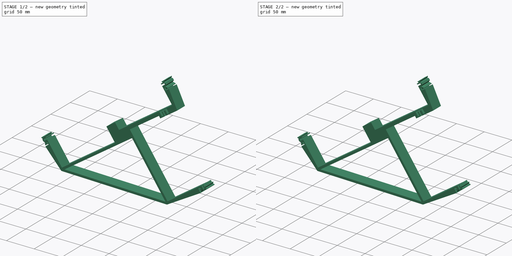
[diagram: build sequence overview — one tinted view per stage of 2, left to right]
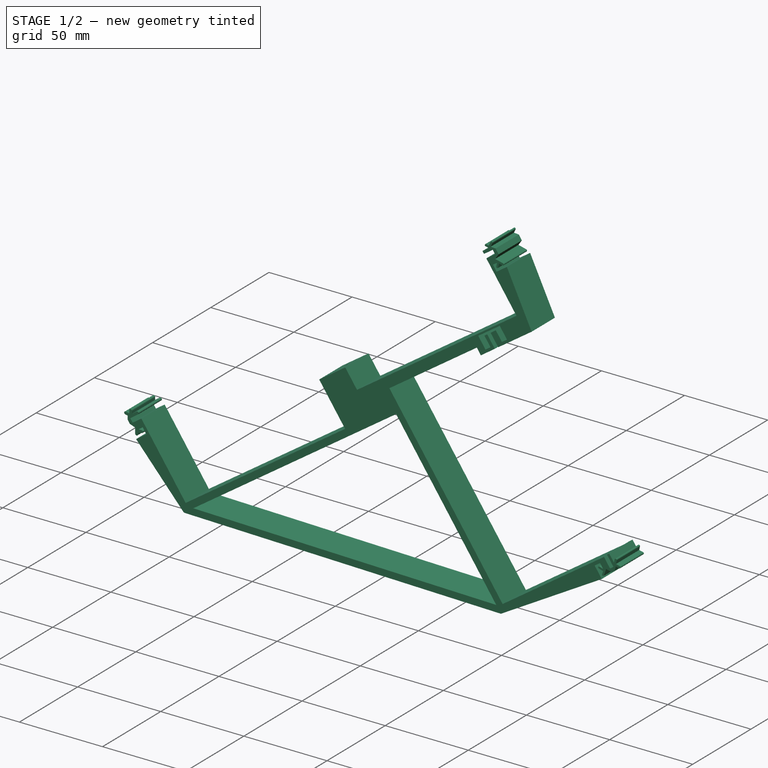
[diagram: stage 1 of 2 — iso view after this stage's code; geometry added in this stage tinted green]
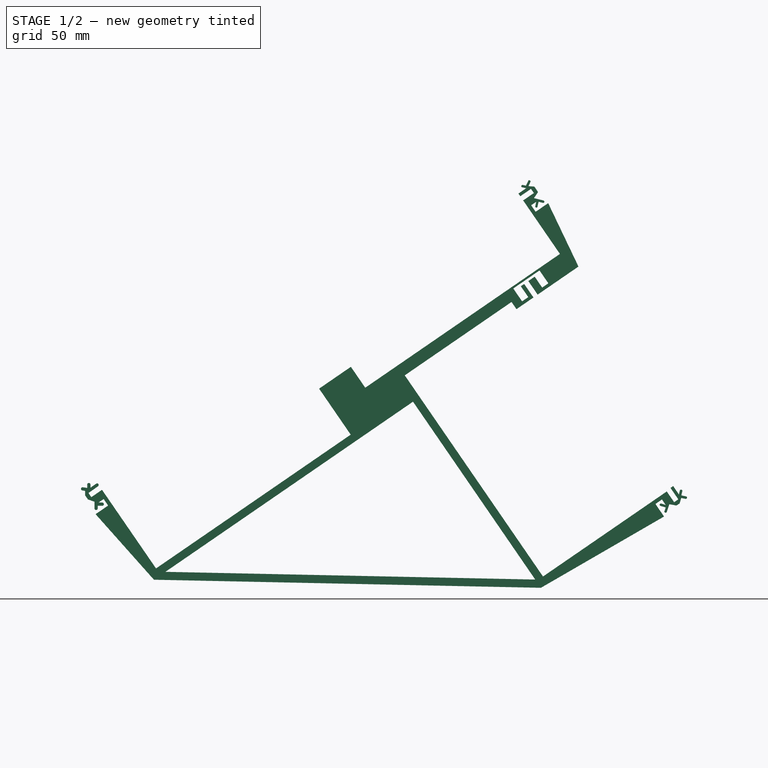
[diagram: stage 1 of 2 — front view after this stage's code; geometry added in this stage tinted green]
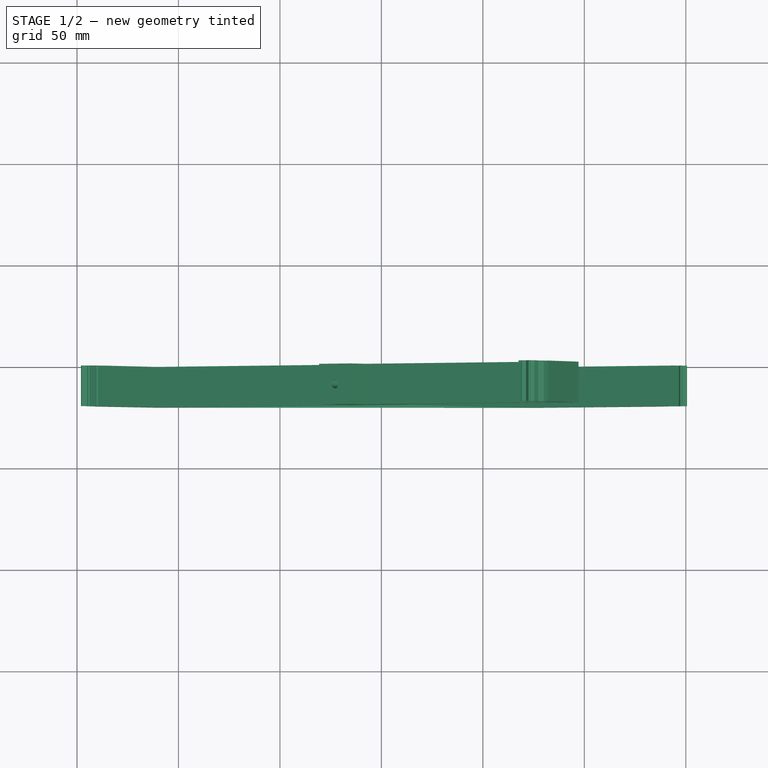
[diagram: stage 1 of 2 — top view after this stage's code; geometry added in this stage tinted green]
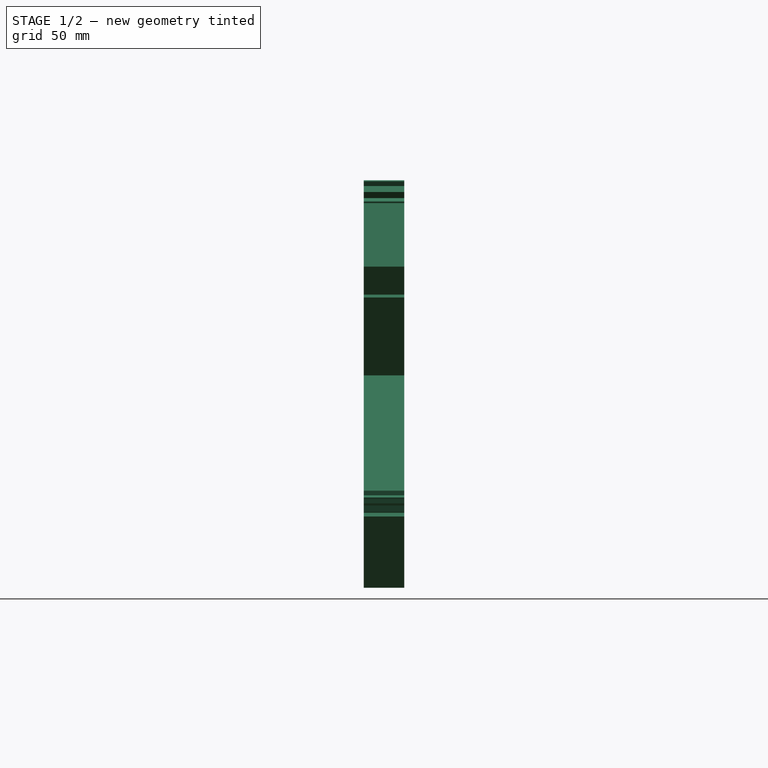
[diagram: stage 1 of 2 — right view after this stage's code; geometry added in this stage tinted green]
FCSTD DOCUMENT  (FreeCAD 0.21R33668 +7 (Git))
Label: rib-shallow
License: All rights reserved
LicenseURL: http://en.wikipedia.org/wiki/All_rights_reserved
objects: Sketcher::SketchObject×2, PartDesign::Pad×1, PartDesign::Plane×1, PartDesign::Pocket×1, PartDesign::Chamfer×1, PartDesign::Body×1
note: 10 computed .brp shape members not serialized (recipe doc carries the construction recipe); baked Part::Feature solids carry a one-line shape summary decoded from their .brp

FEATURE [Sketcher::SketchObject] Sketch
  FullyConstrained = false
  MapMode = 5
  Placement = pos=(0,0,0) rot=(1,0,0;1.5708rad)
  Support = -> [XZ_Plane]
  sketch-geometry (196):
    g0: LineSegment StartX=7.05491 StartY=39.4835 StartZ=0 EndX=112.959 EndY=112.261 EndZ=0
    g1: LineSegment StartX=112.959 StartY=112.261 StartZ=0 EndX=111.543 EndY=114.321 EndZ=0
    g2: LineSegment StartX=111.543 StartY=114.321 StartZ=0 EndX=5.63901 EndY=41.5439 EndZ=0
    g3: LineSegment StartX=5.63901 StartY=41.5439 StartZ=0 EndX=7.05491 EndY=39.4835 EndZ=0
    g4: LineSegment StartX=12.824 StartY=43.448 StartZ=0 EndX=38.8765 EndY=5.53669 EndZ=0
    g5: LineSegment StartX=38.8765 StartY=5.53669 StartZ=0 EndX=133.243 EndY=70.3848 EndZ=0
    g6: LineSegment StartX=133.243 StartY=70.3848 StartZ=0 EndX=107.19 EndY=108.296 EndZ=0
    g7: LineSegment StartX=117.807 StartY=118.625 StartZ=0 EndX=223.711 EndY=191.402 EndZ=0
    g8: LineSegment StartX=223.711 StartY=191.402 StartZ=0 EndX=225.127 EndY=189.342 EndZ=0
    g9: LineSegment StartX=225.127 StartY=189.342 StartZ=0 EndX=119.223 EndY=116.565 EndZ=0
    g10: LineSegment StartX=119.223 StartY=116.565 StartZ=0 EndX=117.807 EndY=118.625 EndZ=0
    g11: LineSegment StartX=124.992 StartY=120.529 StartZ=0 EndX=142.549 EndY=94.9805 EndZ=0
    g12: LineSegment StartX=142.549 StartY=94.9805 StartZ=0 EndX=236.915 EndY=159.829 EndZ=0
    g13: LineSegment StartX=236.915 StartY=159.829 StartZ=0 EndX=219.358 EndY=185.377 EndZ=0
    g14: LineSegment StartX=223.542 StartY=144.329 StartZ=0 EndX=296.319 EndY=38.4246 EndZ=0
    g15: LineSegment StartX=296.319 StartY=38.4246 StartZ=0 EndX=294.259 EndY=37.0087 EndZ=0
    g16: LineSegment StartX=294.259 StartY=37.0087 StartZ=0 EndX=221.482 EndY=142.913 EndZ=0
    g17: LineSegment StartX=221.482 StartY=142.913 StartZ=0 EndX=223.542 EndY=144.329 EndZ=0
    g18: LineSegment StartX=225.446 StartY=137.144 StartZ=0 EndX=166.107 EndY=96.3662 EndZ=0
    g19: LineSegment StartX=166.107 StartY=96.3662 StartZ=0 EndX=230.955 EndY=2 EndZ=0
    g20: LineSegment StartX=230.955 StartY=2 StartZ=0 EndX=290.294 EndY=42.7778 EndZ=0
    g21: LineSegment StartX=120.466 StartY=124.821 StartZ=0 EndX=104.807 EndY=114.06 EndZ=0
    g22: LineSegment StartX=104.807 StartY=114.06 StartZ=0 EndX=105.713 EndY=112.741 EndZ=0
    g23: LineSegment StartX=105.713 StartY=112.741 StartZ=0 EndX=112.883 EndY=117.668 EndZ=0
    g24: LineSegment StartX=112.883 StartY=117.668 StartZ=0 EndX=122.738 EndY=103.328 EndZ=0
    g25: LineSegment StartX=122.738 StartY=103.328 StartZ=0 EndX=124.056 EndY=104.234 EndZ=0
    g26: LineSegment StartX=124.056 StartY=104.234 StartZ=0 EndX=114.202 EndY=118.575 EndZ=0
    g27: LineSegment StartX=114.202 StartY=118.575 StartZ=0 EndX=121.372 EndY=123.502 EndZ=0
    g28: LineSegment StartX=121.372 StartY=123.502 StartZ=0 EndX=120.466 EndY=124.821 EndZ=0
    g29: LineSegment StartX=109.863 StartY=109.526 StartZ=0 EndX=119.718 EndY=95.1861 EndZ=0
    g30: LineSegment StartX=119.718 StartY=95.1861 StartZ=0 EndX=132.74 EndY=104.135 EndZ=0
    g31: LineSegment StartX=132.74 StartY=104.135 StartZ=0 EndX=122.885 EndY=118.475 EndZ=0
    g32: LineSegment StartX=122.885 StartY=118.475 StartZ=0 EndX=124.204 EndY=119.381 EndZ=0
    g33: LineSegment StartX=124.204 StartY=119.381 StartZ=0 EndX=134.965 EndY=103.722 EndZ=0
    g34: LineSegment StartX=134.965 StartY=103.722 StartZ=0 EndX=119.306 EndY=92.9612 EndZ=0
    g35: LineSegment StartX=119.306 StartY=92.9612 StartZ=0 EndX=108.545 EndY=108.62 EndZ=0
    g36: LineSegment StartX=108.545 StartY=108.62 StartZ=0 EndX=109.863 EndY=109.526 EndZ=0
    g37: LineSegment StartX=1.66862 StartY=43.7902 StartZ=0 EndX=9.20119 EndY=32.8289 EndZ=0
    g38: LineSegment StartX=9.20119 StartY=32.8289 StartZ=0 EndX=13.5692 EndY=35.8306 EndZ=0
    g39: LineSegment StartX=13.5692 StartY=35.8306 StartZ=0 EndX=12.1533 EndY=37.891 EndZ=0
    g40: LineSegment StartX=12.1533 StartY=37.891 StartZ=0 EndX=13.1423 EndY=38.5706 EndZ=0
    g41: LineSegment StartX=13.1423 StartY=38.5706 StartZ=0 EndX=15.2379 EndY=35.5212 EndZ=0
    g42: LineSegment StartX=15.2379 StartY=35.5212 StartZ=0 EndX=8.89183 EndY=31.1603 EndZ=0
    g43: LineSegment StartX=8.89183 StartY=31.1603 StartZ=0 EndX=0 EndY=44.0996 EndZ=0
    g44: LineSegment StartX=0 StartY=44.0996 StartZ=0 EndX=6.34602 EndY=48.4605 EndZ=0
    g45: LineSegment StartX=6.34602 StartY=48.4605 StartZ=0 EndX=8.44155 EndY=45.4112 EndZ=0
    g46: LineSegment StartX=8.44155 StartY=45.4112 StartZ=0 EndX=7.45256 EndY=44.7315 EndZ=0
    g47: LineSegment StartX=7.45256 StartY=44.7315 StartZ=0 EndX=6.03666 EndY=46.7919 EndZ=0
    g48: LineSegment StartX=6.03666 StartY=46.7919 StartZ=0 EndX=1.66862 EndY=43.7902 EndZ=0
    g49: LineSegment StartX=217.001 StartY=193.222 StartZ=0 EndX=223.347 EndY=197.583 EndZ=0
    g50: LineSegment StartX=223.347 StartY=197.583 StartZ=0 EndX=232.239 EndY=184.643 EndZ=0
    g51: LineSegment StartX=232.239 StartY=184.643 StartZ=0 EndX=225.893 EndY=180.283 EndZ=0
    g52: LineSegment StartX=225.893 StartY=180.283 StartZ=0 EndX=223.797 EndY=183.332 EndZ=0
    g53: LineSegment StartX=223.797 StartY=183.332 StartZ=0 EndX=224.786 EndY=184.012 EndZ=0
    g54: LineSegment StartX=224.786 StartY=184.012 StartZ=0 EndX=226.202 EndY=181.951 EndZ=0
    g55: LineSegment StartX=226.202 StartY=181.951 StartZ=0 EndX=230.57 EndY=184.953 EndZ=0
    g56: LineSegment StartX=230.57 StartY=184.953 StartZ=0 EndX=223.038 EndY=195.914 EndZ=0
    g57: LineSegment StartX=223.038 StartY=195.914 StartZ=0 EndX=218.67 EndY=192.912 EndZ=0
    g58: LineSegment StartX=218.67 StartY=192.912 StartZ=0 EndX=220.086 EndY=190.852 EndZ=0
    g59: LineSegment StartX=220.086 StartY=190.852 StartZ=0 EndX=219.097 EndY=190.172 EndZ=0
    g60: LineSegment StartX=219.097 StartY=190.172 StartZ=0 EndX=217.001 EndY=193.222 EndZ=0
    g61: LineSegment StartX=214.972 StartY=142.322 StartZ=0 EndX=227.911 EndY=151.214 EndZ=0
    g62: LineSegment StartX=227.911 StartY=151.214 StartZ=0 EndX=232.272 EndY=144.868 EndZ=0
    g63: LineSegment StartX=232.272 StartY=144.868 StartZ=0 EndX=229.222 EndY=142.772 EndZ=0
    g64: LineSegment StartX=229.222 StartY=142.772 StartZ=0 EndX=228.543 EndY=143.761 EndZ=0
    g65: LineSegment StartX=228.543 StartY=143.761 StartZ=0 EndX=230.603 EndY=145.177 EndZ=0
    g66: LineSegment StartX=230.603 StartY=145.177 StartZ=0 EndX=227.602 EndY=149.545 EndZ=0
    g67: LineSegment StartX=227.602 StartY=149.545 StartZ=0 EndX=216.64 EndY=142.013 EndZ=0
    g68: LineSegment StartX=216.64 StartY=142.013 StartZ=0 EndX=219.642 EndY=137.645 EndZ=0
    g69: LineSegment StartX=219.642 StartY=137.645 StartZ=0 EndX=221.702 EndY=139.061 EndZ=0
    g70: LineSegment StartX=221.702 StartY=139.061 StartZ=0 EndX=222.382 EndY=138.072 EndZ=0
    g71: LineSegment StartX=222.382 StartY=138.072 StartZ=0 EndX=219.333 EndY=135.976 EndZ=0
    g72: LineSegment StartX=219.333 StartY=135.976 StartZ=0 EndX=214.972 EndY=142.322 EndZ=0
    g73: LineSegment StartX=288.249 StartY=38.3387 StartZ=0 EndX=285.199 EndY=36.2432 EndZ=0
    g74: LineSegment StartX=285.199 StartY=36.2432 StartZ=0 EndX=289.56 EndY=29.8972 EndZ=0
    g75: LineSegment StartX=289.56 StartY=29.8972 StartZ=0 EndX=302.5 EndY=38.789 EndZ=0
    g76: LineSegment StartX=302.5 StartY=38.789 StartZ=0 EndX=298.139 EndY=45.135 EndZ=0
    g77: LineSegment StartX=298.139 StartY=45.135 StartZ=0 EndX=295.089 EndY=43.0395 EndZ=0
    g78: LineSegment StartX=295.089 StartY=43.0395 StartZ=0 EndX=295.769 EndY=42.0505 EndZ=0
    g79: LineSegment StartX=295.769 StartY=42.0505 StartZ=0 EndX=297.829 EndY=43.4664 EndZ=0
    g80: LineSegment StartX=297.829 StartY=43.4664 StartZ=0 EndX=300.831 EndY=39.0984 EndZ=0
    g81: LineSegment StartX=300.831 StartY=39.0984 StartZ=0 EndX=289.87 EndY=31.5658 EndZ=0
    g82: LineSegment StartX=289.87 StartY=31.5658 StartZ=0 EndX=286.868 EndY=35.9338 EndZ=0
    g83: LineSegment StartX=286.868 StartY=35.9338 StartZ=0 EndX=288.928 EndY=37.3497 EndZ=0
    g84: LineSegment StartX=288.928 StartY=37.3497 StartZ=0 EndX=288.249 EndY=38.3387 EndZ=0
    g85: LineSegment StartX=4.03901 StartY=42.5747 StartZ=0 EndX=2.65585 EndY=42.7938 EndZ=0
    g86: ArcOfCircle CenterX=2.78104 CenterY=43.584 CenterZ=0 NormalX=0 NormalY=0 NormalZ=1 AngleXU=0 Radius=0.8 StartAngle=1.41367 EndAngle=4.55526
    g87: LineSegment StartX=2.90622 StartY=44.3741 StartZ=0 EndX=5.03042 EndY=44.0376 EndZ=0
    g88: LineSegment StartX=5.03042 StartY=44.0376 StartZ=0 EndX=5.03042 EndY=45.6795 EndZ=0
    g89: LineSegment StartX=4.03901 StartY=40.3409 StartZ=0 EndX=5.40659 EndY=38.3508 EndZ=0
    g90: LineSegment StartX=5.40659 StartY=38.3508 StartZ=0 EndX=8.60743 EndY=37.2715 EndZ=0
    g91: LineSegment StartX=8.60743 StartY=37.2715 StartZ=0 EndX=8.60743 EndY=33.9413 EndZ=0
    g92: LineSegment StartX=10.2074 StartY=33.9413 StartZ=0 EndX=10.2074 EndY=35.2368 EndZ=0
    g93: LineSegment StartX=10.2074 StartY=35.2368 StartZ=0 EndX=12.4568 EndY=35.2368 EndZ=0
    g94: ArcOfCircle CenterX=5.83042 CenterY=45.6795 CenterZ=0 NormalX=0 NormalY=0 NormalZ=1 AngleXU=0 Radius=0.8 StartAngle=3e-15 EndAngle=3.14159
    g95: ArcOfCircle CenterX=9.40743 CenterY=33.9413 CenterZ=0 NormalX=0 NormalY=0 NormalZ=1 AngleXU=0 Radius=0.8 StartAngle=3.14159 EndAngle=6.28319
    g96: ArcOfCircle CenterX=12.4568 CenterY=36.0368 CenterZ=0 NormalX=0 NormalY=0 NormalZ=1 AngleXU=0 Radius=0.8 StartAngle=4.71239 EndAngle=7.85398
    g97: LineSegment StartX=12.4568 StartY=36.8368 StartZ=0 EndX=10.6193 EndY=36.8368 EndZ=0
    g98: LineSegment StartX=6.63042 StartY=45.6795 StartZ=0 EndX=6.63042 EndY=44.1666 EndZ=0
    g99: LineSegment StartX=6.63042 StartY=44.1666 StartZ=0 EndX=8.44155 EndY=45.4112 EndZ=0
    g100: LineSegment StartX=7.84905 StartY=43.0626 StartZ=0 EndX=5.63901 EndY=41.5439 EndZ=0
    g101: LineSegment StartX=5.63901 StartY=41.5439 StartZ=0 EndX=7.05491 EndY=39.4835 EndZ=0
    g102: LineSegment StartX=7.05491 StartY=39.4835 StartZ=0 EndX=12.3295 EndY=43.1082 EndZ=0
    g103: LineSegment StartX=4.03901 StartY=40.3409 StartZ=0 EndX=4.03901 EndY=42.5747 EndZ=0
    g104: LineSegment StartX=8.44155 StartY=45.4112 StartZ=0 EndX=9.44731 EndY=46.1366 EndZ=0
    g105: LineSegment StartX=10.3622 StartY=44.8643 StartZ=0 EndX=7.84905 EndY=43.0626 EndZ=0
    g106: LineSegment StartX=10.6193 StartY=36.8368 StartZ=0 EndX=13.1423 EndY=38.5706 EndZ=0
    g107: LineSegment StartX=12.3295 StartY=43.1082 StartZ=0 EndX=38.9484 EndY=4.37272 EndZ=0
    g108: LineSegment StartX=142.549 StartY=94.9805 StartZ=0 EndX=166.903 EndY=59.5417 EndZ=0
    g109: LineSegment StartX=166.903 StartY=59.5417 StartZ=0 EndX=261.269 EndY=124.39 EndZ=0
    g110: LineSegment StartX=261.269 StartY=124.39 StartZ=0 EndX=236.915 EndY=159.829 EndZ=0
    g111: LineSegment StartX=218.437 StartY=187.778 StartZ=0 EndX=217.531 EndY=189.096 EndZ=0
    g112: LineSegment StartX=217.531 StartY=189.096 StartZ=0 EndX=221.385 EndY=191.745 EndZ=0
    g113: LineSegment StartX=221.385 StartY=191.745 StartZ=0 EndX=219.379 EndY=192.171 EndZ=0
    g114: LineSegment StartX=219.629 StartY=193.345 StartZ=0 EndX=221.248 EndY=193.001 EndZ=0
    g115: LineSegment StartX=221.248 StartY=193.001 StartZ=0 EndX=222.34 EndY=195.334 EndZ=0
    g116: LineSegment StartX=223.427 StartY=194.826 StartZ=0 EndX=222.458 EndY=192.755 EndZ=0
    g117: LineSegment StartX=222.458 StartY=192.755 StartZ=0 EndX=225.36 EndY=192.535 EndZ=0
    g118: LineSegment StartX=225.36 StartY=192.535 StartZ=0 EndX=227.206 EndY=189.849 EndZ=0
    g119: LineSegment StartX=227.206 StartY=189.849 StartZ=0 EndX=225.163 EndY=186.851 EndZ=0
    g120: LineSegment StartX=225.163 StartY=186.851 StartZ=0 EndX=229.879 EndY=185.69 EndZ=0
    g121: LineSegment StartX=229.593 StartY=184.525 StartZ=0 EndX=227.449 EndY=185.052 EndZ=0
    g122: LineSegment StartX=227.449 StartY=185.052 StartZ=0 EndX=226.944 EndY=182.661 EndZ=0
    g123: LineSegment StartX=225.771 StartY=182.656 StartZ=0 EndX=226.274 EndY=185.034 EndZ=0
    g124: LineSegment StartX=226.274 StartY=185.034 StartZ=0 EndX=223.797 EndY=183.332 EndZ=0
    g125: LineSegment StartX=218.437 StartY=187.778 StartZ=0 EndX=223.711 EndY=191.402 EndZ=0
    g126: LineSegment StartX=223.711 StartY=191.402 StartZ=0 EndX=225.127 EndY=189.342 EndZ=0
    g127: LineSegment StartX=225.127 StartY=189.342 StartZ=0 EndX=219.853 EndY=185.717 EndZ=0
    g128: LineSegment StartX=219.853 StartY=185.717 StartZ=0 EndX=237.976 EndY=159.344 EndZ=0
    g129: ArcOfCircle CenterX=219.504 CenterY=192.758 CenterZ=0 NormalX=0 NormalY=0 NormalZ=1 AngleXU=0 Radius=0.6 StartAngle=1.36152 EndAngle=4.50312
    g130: ArcOfCircle CenterX=222.883 CenterY=195.08 CenterZ=0 NormalX=0 NormalY=0 NormalZ=1 AngleXU=0 Radius=0.6 StartAngle=5.84573 EndAngle=8.98732
    g131: ArcOfCircle CenterX=229.736 CenterY=185.108 CenterZ=0 NormalX=0 NormalY=0 NormalZ=1 AngleXU=0 Radius=0.6 StartAngle=4.47106 EndAngle=7.61265
    g132: ArcOfCircle CenterX=226.357 CenterY=182.785 CenterZ=0 NormalX=0 NormalY=0 NormalZ=1 AngleXU=0 Radius=0.6 StartAngle=3.35906 EndAngle=6.07486
    g133: LineSegment StartX=237.976 StartY=159.344 StartZ=0 EndX=142.044 EndY=93.4201 EndZ=0
    g134: LineSegment StartX=142.044 StartY=93.4201 StartZ=0 EndX=134.965 EndY=103.722 EndZ=0
    g135: LineSegment StartX=134.965 StartY=103.722 StartZ=0 EndX=119.306 EndY=92.9612 EndZ=0
    g136: LineSegment StartX=119.306 StartY=92.9612 StartZ=0 EndX=134.88 EndY=70.2969 EndZ=0
    g137: LineSegment StartX=134.88 StartY=70.2969 StartZ=0 EndX=38.9484 EndY=4.37272 EndZ=0
    g138: LineSegment StartX=214.125 StartY=135.674 StartZ=0 EndX=216.56 EndY=132.13 EndZ=0
    g139: LineSegment StartX=216.56 StartY=132.13 StartZ=0 EndX=224.936 EndY=137.886 EndZ=0
    g140: LineSegment StartX=224.936 StartY=137.886 StartZ=0 EndX=220.349 EndY=144.561 EndZ=0
    g141: LineSegment StartX=220.349 StartY=144.561 StartZ=0 EndX=218.701 EndY=143.429 EndZ=0
    g142: LineSegment StartX=218.701 StartY=143.429 StartZ=0 EndX=222.382 EndY=138.072 EndZ=0
    g143: LineSegment StartX=222.382 StartY=138.072 StartZ=0 EndX=219.333 EndY=135.976 EndZ=0
    g144: LineSegment StartX=219.333 StartY=135.976 StartZ=0 EndX=214.972 EndY=142.322 EndZ=0
    g145: LineSegment StartX=214.972 StartY=142.322 StartZ=0 EndX=227.911 EndY=151.214 EndZ=0
    g146: LineSegment StartX=227.911 StartY=151.214 StartZ=0 EndX=232.272 EndY=144.868 EndZ=0
    g147: LineSegment StartX=232.272 StartY=144.868 StartZ=0 EndX=229.222 EndY=142.772 EndZ=0
    g148: LineSegment StartX=229.222 StartY=142.772 StartZ=0 EndX=225.541 EndY=148.13 EndZ=0
    g149: LineSegment StartX=225.541 StartY=148.13 StartZ=0 EndX=222.409 EndY=145.977 EndZ=0
    g150: LineSegment StartX=222.409 StartY=145.977 StartZ=0 EndX=226.997 EndY=139.302 EndZ=0
    g151: LineSegment StartX=226.997 StartY=139.302 StartZ=0 EndX=245.376 EndY=151.931 EndZ=0
    g152: LineSegment StartX=292.46 StartY=44.0399 StartZ=0 EndX=293.779 EndY=44.9461 EndZ=0
    g153: LineSegment StartX=293.779 StartY=44.9461 StartZ=0 EndX=296.611 EndY=40.8245 EndZ=0
    g154: LineSegment StartX=296.611 StartY=40.8245 StartZ=0 EndX=297.056 EndY=42.7355 EndZ=0
    g155: LineSegment StartX=298.279 StartY=42.451 StartZ=0 EndX=297.798 EndY=40.3847 EndZ=0
    g156: LineSegment StartX=297.798 StartY=40.3847 StartZ=0 EndX=300.094 EndY=39.8731 EndZ=0
    g157: LineSegment StartX=299.821 StartY=38.6473 StartZ=0 EndX=297.765 EndY=39.1054 EndZ=0
    g158: LineSegment StartX=297.765 StartY=39.1054 StartZ=0 EndX=296.953 EndY=36.4335 EndZ=0
    g159: LineSegment StartX=296.953 StartY=36.4335 StartZ=0 EndX=295.391 EndY=35.3604 EndZ=0
    g160: LineSegment StartX=295.391 StartY=35.3604 StartZ=0 EndX=291.873 EndY=36.0213 EndZ=0
    g161: LineSegment StartX=291.873 StartY=36.0213 StartZ=0 EndX=290.628 EndY=32.2424 EndZ=0
    g162: LineSegment StartX=289.412 StartY=32.3352 StartZ=0 EndX=290.102 EndY=34.4272 EndZ=0
    g163: LineSegment StartX=290.102 StartY=34.4272 StartZ=0 EndX=287.565 EndY=35.1693 EndZ=0
    g164: LineSegment StartX=287.653 StartY=36.3937 StartZ=0 EndX=290.071 EndY=35.6864 EndZ=0
    g165: LineSegment StartX=290.071 StartY=35.6864 StartZ=0 EndX=288.238 EndY=38.3549 EndZ=0
    g166: LineSegment StartX=292.46 StartY=44.0399 StartZ=0 EndX=296.319 EndY=38.4246 EndZ=0
    g167: LineSegment StartX=296.319 StartY=38.4246 StartZ=0 EndX=294.259 EndY=37.0087 EndZ=0
    g168: LineSegment StartX=294.259 StartY=37.0087 StartZ=0 EndX=290.623 EndY=42.2995 EndZ=0
    g169: LineSegment StartX=290.623 StartY=42.2995 StartZ=0 EndX=229.635 EndY=0.388931 EndZ=0
    g170: ArcOfCircle CenterX=297.667 CenterY=42.5933 CenterZ=0 NormalX=0 NormalY=0 NormalZ=1 AngleXU=0 Radius=0.627931 StartAngle=6.05471 EndAngle=9.1963
    g171: ArcOfCircle CenterX=299.958 CenterY=39.2602 CenterZ=0 NormalX=0 NormalY=0 NormalZ=1 AngleXU=0 Radius=0.627931 StartAngle=4.49313 EndAngle=7.63473
    g172: ArcOfCircle CenterX=290.031 CenterY=32.4389 CenterZ=0 NormalX=0 NormalY=0 NormalZ=1 AngleXU=0 Radius=0.627931 StartAngle=3.3075 EndAngle=5.96479
    g173: ArcOfCircle CenterX=287.741 CenterY=35.772 CenterZ=0 NormalX=0 NormalY=0 NormalZ=1 AngleXU=0 Radius=0.627931 StartAngle=1.71123 EndAngle=4.42782
    g174: LineSegment StartX=161.513 StartY=99.5191 StartZ=0 EndX=229.635 EndY=0.388931 EndZ=0
    g175: LineSegment StartX=214.125 StartY=135.674 StartZ=0 EndX=161.513 EndY=99.5191 EndZ=0
    g176: ArcOfCircle CenterX=9.90566 CenterY=45.5011 CenterZ=0 NormalX=0 NormalY=0 NormalZ=1 AngleXU=0 Radius=0.783524 StartAngle=5.33438 EndAngle=8.47886
    g177: LineSegment StartX=288.238 StartY=38.3549 StartZ=0 EndX=285.035 EndY=36.129 EndZ=0
    g178: LineSegment StartX=285.035 StartY=36.129 StartZ=0 EndX=289.283 EndY=29.9479 EndZ=0
    g179: LineSegment StartX=289.283 StartY=29.9479 StartZ=0 EndX=228.604 EndY=-5.17314 EndZ=0
    g180: LineSegment StartX=223.797 StartY=183.332 StartZ=0 EndX=226.006 EndY=180.118 EndZ=0
    g181: LineSegment StartX=226.006 StartY=180.118 StartZ=0 EndX=245.376 EndY=151.931 EndZ=0
    g182: LineSegment StartX=226.006 StartY=180.118 StartZ=0 EndX=232.187 EndY=184.365 EndZ=0
    g183: LineSegment StartX=13.1423 StartY=38.5706 StartZ=0 EndX=15.3511 EndY=35.3564 EndZ=0
    g184: LineSegment StartX=15.3511 StartY=35.3564 StartZ=0 EndX=39.6479 EndY=0 EndZ=0
    g185: LineSegment StartX=15.3511 StartY=35.3564 StartZ=0 EndX=9.16993 EndY=31.1087 EndZ=0
    g186: LineSegment StartX=9.16993 StartY=31.1087 StartZ=0 EndX=37.9172 EndY=-1.18935 EndZ=0
    g187: LineSegment StartX=37.9172 StartY=-1.18935 StartZ=0 EndX=39.6479 EndY=0 EndZ=0
    g188: LineSegment StartX=232.187 StartY=184.365 StartZ=0 EndX=247.106 EndY=153.121 EndZ=0
    g189: LineSegment StartX=247.106 StartY=153.121 StartZ=0 EndX=245.376 EndY=151.931 EndZ=0
    g190: LineSegment StartX=37.9172 StartY=-1.18935 StartZ=0 EndX=228.604 EndY=-5.17314 EndZ=0
    g191: LineSegment StartX=43.5674 StartY=2.69348 StartZ=0 EndX=225.815 EndY=-1.11399 EndZ=0
    g192: LineSegment StartX=165.579 StartY=86.5396 StartZ=0 EndX=225.815 EndY=-1.11399 EndZ=0
    g193: LineSegment StartX=225.815 StartY=-1.11399 StartZ=0 EndX=228.604 EndY=-5.17314 EndZ=0
    g194: LineSegment StartX=39.6479 StartY=0 StartZ=0 EndX=43.5674 EndY=2.69348 EndZ=0
    g195: LineSegment StartX=43.5674 StartY=2.69348 StartZ=0 EndX=165.579 EndY=86.5396 EndZ=0
  constraints (533):
    c: Coincident(g0,g1)
    c: Coincident(g1,g2)
    c: Coincident(g2,g3)
    c: Coincident(g3,g0)
    c: Parallel(g0,g2)
    c: Parallel(g3,g1)
    c: Perpendicular(g1,g0)
    c: Distance(g1) = 2.5
    c: Distance(g0) = 128.5
    c: PointOnObject(g4,g0)
    c: Coincident(g4,g5)
    c: Coincident(g5,g6)
    c: PointOnObject(g6,g0)
    c: Perpendicular(g5,g4)
    c: Perpendicular(g4,g0)
    c: Perpendicular(g5,g6)
    c: Distance(g0,g4) = 7
    c: Distance(g0,g6) = 7
    c: Coincident(g7,g8)
    c: Coincident(g8,g9)
    c: Coincident(g9,g10)
    c: Coincident(g10,g7)
    c: PointOnObject(g11,g9)
    c: Coincident(g11,g12)
    c: Coincident(g12,g13)
    c: PointOnObject(g13,g9)
    c: Equal(g2,g7)
    c: Perpendicular(g8,g7)
    c: Perpendicular(g10,g9)
    c: Perpendicular(g7,g10)
    c: Equal(g10,g1)
    c: Distance(g9,g11) = 7
    c: Perpendicular(g9,g11)
    c: Perpendicular(g12,g11)
    c: Distance(g8,g13) = 7
    c: Perpendicular(g12,g13)
    c: Coincident(g14,g15)
    c: Coincident(g15,g16)
    c: Coincident(g16,g17)
    c: Coincident(g17,g14)
    c: PointOnObject(g18,g16)
    c: Coincident(g18,g19)
    c: Coincident(g19,g20)
    c: PointOnObject(g20,g16)
    c: Equal(g7,g14)
    c: Perpendicular(g14,g17)
    c: Perpendicular(g16,g17)
    c: Perpendicular(g16,g18)
    c: Perpendicular(g18,g19)
    c: Perpendicular(g19,g20)
    c: Perpendicular(g16,g15)
    c: Distance(g15,g20) = 7
    c: Distance(g16,g18) = 7
    c: Equal(g17,g8)
    c: Coincident(g21,g22)
    c: Coincident(g22,g23)
    c: Coincident(g23,g24)
    c: Coincident(g24,g25)
    c: Coincident(g25,g26)
    c: Coincident(g26,g27)
    c: Coincident(g27,g28)
    c: Coincident(g28,g21)
    c: Coincident(g29,g30)
    c: Coincident(g30,g31)
    c: Coincident(g31,g32)
    c: Coincident(g32,g33)
    c: Coincident(g33,g34)
    c: Coincident(g34,g35)
    c: Coincident(g35,g36)
    c: Coincident(g36,g29)
    c: Coincident(g37,g38)
    c: Coincident(g38,g39)
    c: Coincident(g39,g40)
    c: Coincident(g40,g41)
    c: Coincident(g41,g42)
    c: Coincident(g42,g43)
    c: Coincident(g43,g44)
    c: Coincident(g44,g45)
    c: Coincident(g45,g46)
    c: Coincident(g46,g47)
    c: Coincident(g47,g48)
    c: Coincident(g48,g37)
    c: Coincident(g49,g50)
    c: Coincident(g50,g51)
    c: Coincident(g51,g52)
    c: Coincident(g52,g53)
    c: Coincident(g53,g54)
    c: Coincident(g54,g55)
    c: Coincident(g55,g56)
    c: Coincident(g56,g57)
    c: Coincident(g57,g58)
    c: Coincident(g58,g59)
    c: Coincident(g59,g60)
    c: Coincident(g60,g49)
    c: Coincident(g61,g62)
    c: Coincident(g62,g63)
    c: Coincident(g63,g64)
    c: Coincident(g64,g65)
    c: Coincident(g65,g66)
    c: Coincident(g66,g67)
    c: Coincident(g67,g68)
    c: Coincident(g68,g69)
    c: Coincident(g69,g70)
    c: Coincident(g70,g71)
    c: Coincident(g71,g72)
    c: Coincident(g72,g61)
    c: Coincident(g73,g74)
    c: Coincident(g74,g75)
    c: Coincident(g75,g76)
    c: Coincident(g76,g77)
    c: Coincident(g77,g78)
    c: Coincident(g78,g79)
    c: Coincident(g79,g80)
    c: Coincident(g80,g81)
    c: Coincident(g81,g82)
    c: Coincident(g82,g83)
    c: Coincident(g83,g84)
    c: Coincident(g84,g73)
    c: Perpendicular(g37,g48)
    c: Parallel(g37,g43)
    c: Parallel(g40,g46)
    c: Parallel(g46,g44)
    c: Parallel(g44,g48)
    c: Parallel(g48,g38)
    c: Parallel(g38,g42)
    c: Parallel(g41,g39)
    c: Parallel(g39,g37)
    c: Parallel(g37,g47)
    c: Parallel(g47,g45)
    c: Equal(g48,g38)
    c: Equal(g40,g46)
    c: Equal(g45,g41)
    c: Equal(g47,g39)
    c: Perpendicular(g30,g29)
    c: Parallel(g33,g31)
    c: Parallel(g31,g29)
    c: Parallel(g29,g35)
    c: Parallel(g35,g22)
    c: Parallel(g22,g24)
    c: Parallel(g24,g26)
    c: Parallel(g26,g28)
    c: Parallel(g21,g23)
    c: Parallel(g23,g27)
    c: Parallel(g27,g25)
    c: Parallel(g25,g30)
    c: Parallel(g30,g34)
    c: Parallel(g34,g32)
    c: Parallel(g32,g36)
    c: Equal(g25,g22)
    c: Equal(g22,g28)
    c: Equal(g32,g36)
    c: Perpendicular(g57,g56)
    c: Parallel(g56,g50)
    c: Parallel(g50,g58)
    c: Parallel(g58,g60)
    c: Parallel(g60,g54)
    c: Parallel(g54,g52)
    c: Parallel(g55,g53)
    c: Parallel(g53,g59)
    c: Parallel(g59,g57)
    c: Parallel(g57,g49)
    c: Parallel(g49,g51)
    c: Equal(g55,g57)
    c: Equal(g58,g54)
    c: Equal(g53,g59)
    c: Equal(g52,g60)
    c: Parallel(g72,g68)
    c: Parallel(g68,g66)
    c: Parallel(g66,g62)
    c: Parallel(g62,g64)
    c: Parallel(g64,g70)
    c: Parallel(g69,g67)
    c: Parallel(g67,g61)
    c: Parallel(g61,g65)
    c: Parallel(g65,g63)
    c: Parallel(g63,g71)
    c: Equal(g68,g66)
    c: Perpendicular(g66,g65)
    c: Equal(g64,g70)
    c: Equal(g71,g63)
    c: Equal(g69,g65)
    c: Parallel(g81,g83)
    c: Parallel(g83,g79)
    c: Parallel(g79,g77)
    c: Parallel(g77,g73)
    c: Parallel(g73,g75)
    c: Parallel(g84,g78)
    c: Parallel(g78,g74)
    c: Parallel(g74,g82)
    c: Parallel(g82,g80)
    c: Parallel(g80,g76)
    c: Perpendicular(g80,g81)
    c: Equal(g84,g78)
    c: Equal(g79,g83)
    c: Equal(g76,g74)
    c: Equal(g77,g73)
    c: Equal(g46,g59)
    c: Equal(g78,g64)
    c: Equal(g64,g53)
    c: Distance(g40) = 1.2
    c: Distance(g37,g42) = 1.2
    c: Distance(g37,g43) = 1.2
    c: Distance(g42) = 7.7
    c: Distance(g43) = 15.7
    c: Distance(g45) = 3.7
    c: Distance(g25) = 1.6
    c: Distance(g21) = 19
    c: Equal(g23,g27)
    c: Distance(g25,g21) = 19
    c: Equal(g36,g25)
    c: Distance(g30,g34) = 1.6
    c: Equal(g33,g34)
    c: Equal(g34,g21)
    c: Equal(g35,g33)
    c: Distance(g56,g50) = 1.2
    c: Distance(g57,g49) = 1.2
    c: Distance(g50) = 15.7
    c: Distance(g67,g61) = 1.2
    c: Distance(g67,g72) = 1.2
    c: Equal(g50,g61)
    c: Distance(g80,g76) = 1.2
    c: Distance(g80,g75) = 1.2
    c: Equal(g60,g45)
    c: Equal(g71,g52)
    c: Equal(g51,g72)
    c: Equal(g51,g44)
    c: Equal(g61,g75)
    c: Equal(g73,g71)
    c: Equal(g74,g62)
    c: Distance(g4) = 46
    c: Distance(g11) = 31
    c: Distance(g18) = 72
    c: Parallel(g2,g7)
    c: PointOnObject(g1,g7)
    c: Parallel(g23,g2)
    c: Distance(g1,g24) = 3
    c: Distance(g7,g26) = 3
    c: PointOnObject(g22,g35)
    c: Distance(g22,g2) = 2
    c: Distance(g22,g36) = 5
    c: Parallel(g48,g2)
    c: Distance(g45,g2) = 1.6
    c: Distance(g0,g37) = 2
    c: Parallel(g57,g7)
    c: Distance(g7,g56) = 2
    c: PointOnObject(g44,g49)
    c: Distance(g16,g67) = 2
    c: Parallel(g66,g14)
    c: Parallel(g61,g12)
    c: Parallel(g74,g19)
    c: Distance(g14,g81) = 2
    c: PointOnObject(g43,g-2)
    c: Distance(g61,g12) = 2
    c: Distance(g50,g14) = 30
    c: Distance(g69,g16) = 2
    c: DistanceY(g-1,g19) = 2
    c: PointOnObject(g103,g37)
    c: Tangent(g86,g87) = 1.5708
    c: Coincident(g87,g88)
    c: Vertical(g88)
    c: Coincident(g103,g89)
    c: PointOnObject(g89,g37)
    c: Coincident(g89,g90)
    c: Coincident(g90,g91)
    c: Vertical(g92)
    c: Coincident(g92,g93)
    c: Equal(g86,g94)
    c: Equal(g94,g95)
    c: Equal(g95,g96)
    c: Parallel(g87,g85)
    c: Tangent(g96,g97) = -1.5708
    c: Tangent(g94,g98) = 1.5708
    c: Coincident(g98,g99)
    c: Coincident(g99,g45)
    c: PointOnObject(g100,g2)
    c: Coincident(g100,g2)
    c: Coincident(g100,g101)
    c: Coincident(g101,g0)
    c: Coincident(g101,g102)
    c: PointOnObject(g102,g0)
    c: Parallel(g98,g88)
    c: Tangent(g94,g48)
    c: Tangent(g86,g48)
    c: Tangent(g86,g85) = 1.5708
    c: Tangent(g86,g37)
    c: Tangent(g94,g47)
    c: Parallel(g99,g46)
    c: Parallel(g97,g93)
    c: Parallel(g92,g91)
    c: Tangent(g95,g92) = -1.5708
    c: Tangent(g95,g91) = -1.5708
    c: Tangent(g96,g93) = -1.5708
    c: Tangent(g96,g38)
    c: Tangent(g96,g39)
    c: Tangent(g95,g37)
    c: Tangent(g95,g38)
    c: Distance(g85,g87) = 1.6
    c: Parallel(g88,g103)
    c: Coincident(g103,g85)
    c: Distance(g100,g103) = 1.6
    c: Distance(g101,g90) = 1.6
    c: Coincident(g99,g104)
    c: Coincident(g105,g100)
    c: Coincident(g97,g106)
    c: Coincident(g106,g40)
    c: Coincident(g106,g183)
    c: PointOnObject(g184,g-1)
    c: Coincident(g102,g107)
    c: Parallel(g106,g42)
    c: PointOnObject(g89,g102)
    c: Perpendicular(g92,g93)
    c: Parallel(g4,g107)
    c: Coincident(g11,g108)
    c: Coincident(g108,g109)
    c: Coincident(g109,g110)
    c: Coincident(g110,g12)
    c: Parallel(g108,g11)
    c: Parallel(g11,g110)
    c: Parallel(g109,g12)
    c: Distance(g108) = 43
    c: PointOnObject(g111,g7)
    c: Coincident(g111,g112)
    c: Coincident(g112,g113)
    c: Coincident(g114,g115)
    c: Coincident(g116,g117)
    c: PointOnObject(g117,g56)
    c: Coincident(g117,g118)
    c: PointOnObject(g118,g56)
    c: Coincident(g118,g119)
    c: Coincident(g119,g120)
    c: Coincident(g121,g122)
    c: Coincident(g123,g124)
    c: Coincident(g124,g180)
    c: Coincident(g111,g125)
    c: Coincident(g125,g7)
    c: Coincident(g125,g126)
    c: Coincident(g126,g8)
    c: Coincident(g126,g127)
    c: PointOnObject(g127,g9)
    c: Coincident(g127,g128)
    c: Coincident(g132,g123)
    c: Equal(g129,g130)
    c: Equal(g130,g131)
    c: Equal(g131,g132)
    c: Distance(g112,g114) = 1.2
    c: Parallel(g113,g114)
    c: Tangent(g129,g57)
    c: Tangent(g130,g57)
    c: Tangent(g130,g56)
    c: Tangent(g129,g58)
    c: Parallel(g121,g120)
    c: Parallel(g122,g123)
    c: Parallel(g124,g55)
    c: Tangent(g132,g55)
    c: Tangent(g131,g55)
    c: Tangent(g131,g56)
    c: Tangent(g132,g54)
    c: PointOnObject(g53,g124)
    c: PointOnObject(g124,g52)
    c: PointOnObject(g117,g125)
    c: Tangent(g131,g120) = 1.5708
    c: Parallel(g116,g115)
    c: Distance(g181,g128) = 1.9
    c: Coincident(g128,g133)
    c: Coincident(g133,g134)
    c: Coincident(g134,g33)
    c: Coincident(g134,g135)
    c: Coincident(g135,g34)
    c: Coincident(g135,g136)
    c: Coincident(g136,g137)
    c: Coincident(g138,g139)
    c: PointOnObject(g139,g16)
    c: Coincident(g139,g140)
    c: PointOnObject(g140,g67)
    c: Coincident(g140,g141)
    c: PointOnObject(g141,g67)
    c: Coincident(g141,g142)
    c: Coincident(g142,g70)
    c: Coincident(g142,g143)
    c: Coincident(g143,g71)
    c: Coincident(g143,g144)
    c: Coincident(g144,g61)
    c: Coincident(g144,g145)
    c: Coincident(g145,g61)
    c: Coincident(g145,g146)
    c: Coincident(g146,g62)
    c: Coincident(g146,g147)
    c: Coincident(g147,g63)
    c: Coincident(g147,g148)
    c: PointOnObject(g148,g67)
    c: Coincident(g148,g149)
    c: PointOnObject(g149,g67)
    c: Coincident(g149,g150)
    c: PointOnObject(g150,g14)
    c: Coincident(g150,g151)
    c: Coincident(g151,g181)
    c: Parallel(g150,g14)
    c: Distance(g78,g14) = 1.6
    c: PointOnObject(g152,g14)
    c: Coincident(g152,g153)
    c: Coincident(g153,g154)
    c: Coincident(g155,g156)
    c: Coincident(g157,g158)
    c: PointOnObject(g158,g81)
    c: Coincident(g158,g159)
    c: PointOnObject(g159,g81)
    c: Coincident(g159,g160)
    c: Coincident(g160,g161)
    c: Coincident(g164,g165)
    c: Coincident(g165,g177)
    c: Coincident(g152,g166)
    c: Coincident(g166,g14)
    c: Coincident(g166,g167)
    c: Coincident(g167,g15)
    c: Coincident(g167,g168)
    c: PointOnObject(g168,g16)
    c: Coincident(g168,g169)
    c: Coincident(g172,g162)
    c: Coincident(g173,g164)
    c: Tangent(g173,g163) = 1.5708
    c: Tangent(g172,g161) = 1.5708
    c: Tangent(g170,g154) = 1.5708
    c: Tangent(g170,g155) = 1.5708
    c: Tangent(g171,g156) = 1.5708
    c: Tangent(g171,g157) = 1.5708
    c: Equal(g171,g170)
    c: Equal(g170,g173)
    c: Equal(g173,g172)
    c: Parallel(g156,g157)
    c: Parallel(g155,g154)
    c: Tangent(g170,g80)
    c: Tangent(g170,g79)
    c: Parallel(g153,g166)
    c: PointOnObject(g77,g153)
    c: Parallel(g152,g77)
    c: Tangent(g80,g171)
    c: Tangent(g171,g81)
    c: Tangent(g172,g81)
    c: Tangent(g172,g82)
    c: Tangent(g173,g82)
    c: Tangent(g83,g173)
    c: PointOnObject(g83,g165)
    c: Parallel(g84,g165)
    c: Parallel(g164,g163)
    c: Distance(g164,g163) = 1.2
    c: Parallel(g161,g162)
    c: PointOnObject(g159,g168)
    c: Distance(g165,g169) = 1.9
    c: Coincident(g174,g169)
    c: Parallel(g19,g174)
    c: Parallel(g138,g174)
    c: Coincident(g107,g137)
    c: Coincident(g184,g194)
    c: Tangent(g94,g88) = 1.5708
    c: Parallel(g134,g11)
    c: Parallel(g11,g136)
    c: Parallel(g140,g14)
    c: Parallel(g14,g148)
    c: Parallel(g148,g142)
    c: Parallel(g5,g137)
    c: PointOnObject(g59,g112)
    c: Tangent(g130,g116) = 1.5708
    c: Tangent(g130,g115) = 1.5708
    c: Tangent(g129,g114) = 1.5708
    c: Tangent(g129,g113) = 1.5708
    c: Tangent(g128,g111)
    c: Tangent(g132,g122) = 1.5708
    c: Tangent(g131,g121) = 1.5708
    c: Parallel(g133,g175)
    c: Coincident(g175,g174)
    c: Coincident(g138,g175)
    c: Distance(g138,g133) = 6
    c: Distance(g4,g137) = 1
    c: Coincident(g192,g195)
    c: Tangent(g104,g176) = 1.5708
    c: Tangent(g105,g176) = 1.5708
    c: Parallel(g112,g125)
    c: Tangent(g151,g139)
    c: Parallel(g133,g12)
    c: Distance(g12,g133) = 1
    c: PointOnObject(g73,g177)
    c: Coincident(g177,g178)
    c: Coincident(g178,g179)
    c: Coincident(g179,g193)
    c: Distance(g73,g178) = 0.2
    c: Parallel(g178,g74)
    c: Distance(g178) = 7.5
    c: Distance(g193,g169) = 4
    c: Parallel(g169,g20)
    c: Distance(g169,g19) = 2
    c: Coincident(g180,g181)
    c: Parallel(g180,g13)
    c: Parallel(g181,g13)
    c: Parallel(g128,g180)
    c: Coincident(g180,g182)
    c: Parallel(g182,g51)
    c: Distance(g180,g51) = 0.2
    c: Distance(g182) = 7.5
    c: Coincident(g183,g184)
    c: Parallel(g107,g183)
    c: Parallel(g107,g184)
    c: Distance(g107,g183) = 1.9
    c: Coincident(g183,g185)
    c: Coincident(g185,g186)
    c: Coincident(g186,g187)
    c: Coincident(g187,g194)
    c: Distance(g183,g42) = 0.2
    c: Distance(g185) = 7.5
    c: Parallel(g185,g42)
    c: Distance(g186,g107) = 4
    c: Coincident(g182,g188)
    c: Coincident(g188,g189)
    c: Coincident(g189,g151)
    c: Parallel(g189,g151)
    c: Distance(g189) = 2.1
    c: Parallel(g151,g133)
    c: Distance(g147,g151) = 1.6
    c: Coincident(g190,g186)
    c: DistanceX(g193) = 228.604
    c: Distance(g191,g190) = 4
    c: Parallel(g191,g190)
    c: Coincident(g193,g190)
    c: Coincident(g192,g193)
    c: Parallel(g174,g192)
    c: Parallel(g174,g193)
    c: Distance(g169,g192) = 4
    c: Coincident(g192,g191)
    c: Coincident(g194,g195)
    c: Parallel(g194,g137)
    c: Parallel(g195,g137)
    c: Distance(g107,g194) = 4
    c: Parallel(g194,g187)
    c: Coincident(g191,g194)
FEATURE [PartDesign::Pad] Pad
  Direction = (0,-1,-2e-16)
  Length = 20
  Length2 = 10
  Placement = pos=(0,0,0) rot=(1,0,0;1.5708rad)
  Profile = -> Sketch
  ReferenceAxis = -> Sketch [N_Axis]
  Type = 0
FEATURE [PartDesign::Plane] DatumPlane
  Length = 421.362
  MapMode = 5
  Placement = pos=(-5.12275,-1.7e-15,7.45457) rot=(-0.296514,0,0.955029;3.14159rad)
  ResizeMode = 0
  Support = -> [Pad]
  Width = 78.0469
FEATURE [Sketcher::SketchObject] Sketch001
  FullyConstrained = false
  MapMode = 5
  Placement = pos=(-5.12275,-1.7e-15,7.45457) rot=(-0.296514,0,0.955029;3.14159rad)
  Support = -> [DatumPlane]
  sketch-geometry (5):
    g0: LineSegment StartX=-170 StartY=19.9592 StartZ=0 EndX=-151 EndY=19.9592 EndZ=0
    g1: LineSegment StartX=-151 StartY=19.9592 StartZ=0 EndX=-151 EndY=0.0188842 EndZ=0
    g2: LineSegment StartX=-151 StartY=0.0188842 StartZ=0 EndX=-170 EndY=0.0188842 EndZ=0
    g3: LineSegment StartX=-170 StartY=0.0188842 StartZ=0 EndX=-170 EndY=19.9592 EndZ=0
    g4: Circle CenterX=-160.5 CenterY=9.98904 CenterZ=0 NormalX=0 NormalY=0 NormalZ=1 AngleXU=0 Radius=2.15
  constraints (12):
    c: Coincident(g0,g1)
    c: Coincident(g1,g2)
    c: Coincident(g2,g3)
    c: Coincident(g3,g0)
    c: Horizontal(g0)
    c: Horizontal(g2)
    c: Vertical(g1)
    c: Vertical(g3)
    c: Symmetric(g0,g1,g4)
    c: Diameter(g4) = 4.3
    c: DistanceX(g0,g0) = 19
    c: DistanceX(g0) = -170
FEATURE [PartDesign::Pocket] Pocket
  BaseFeature = -> Pad
  Direction = (0.566359,2e-16,-0.824159)
  Length = 47
  Length2 = 5
  Placement = pos=(0,0,0) rot=(1,0,0;1.5708rad)
  Profile = -> Sketch001
  ReferenceAxis = -> Sketch001 [N_Axis]
  Type = 0
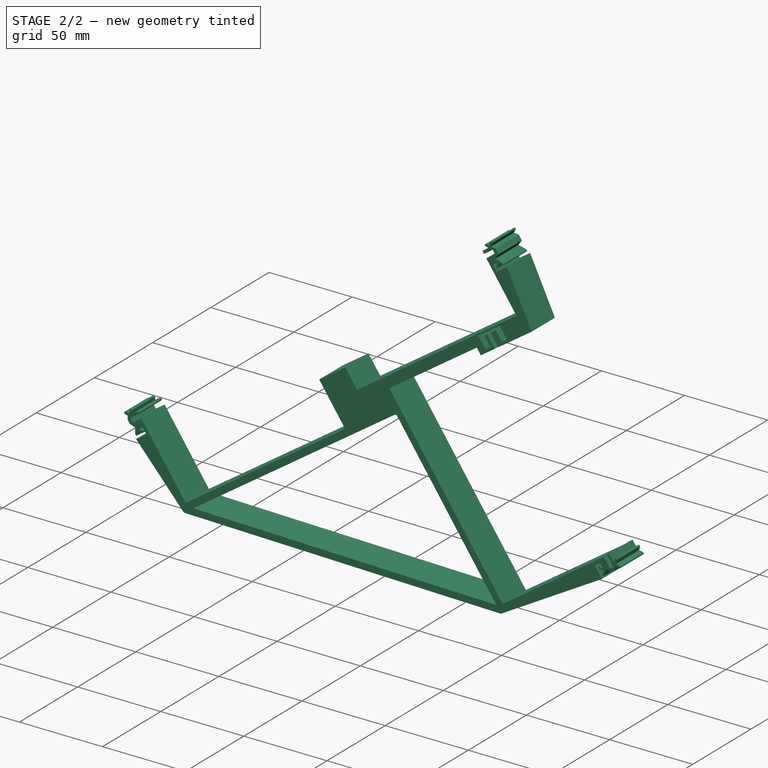
[diagram: stage 2 of 2 — iso view after this stage's code; geometry added in this stage tinted green]
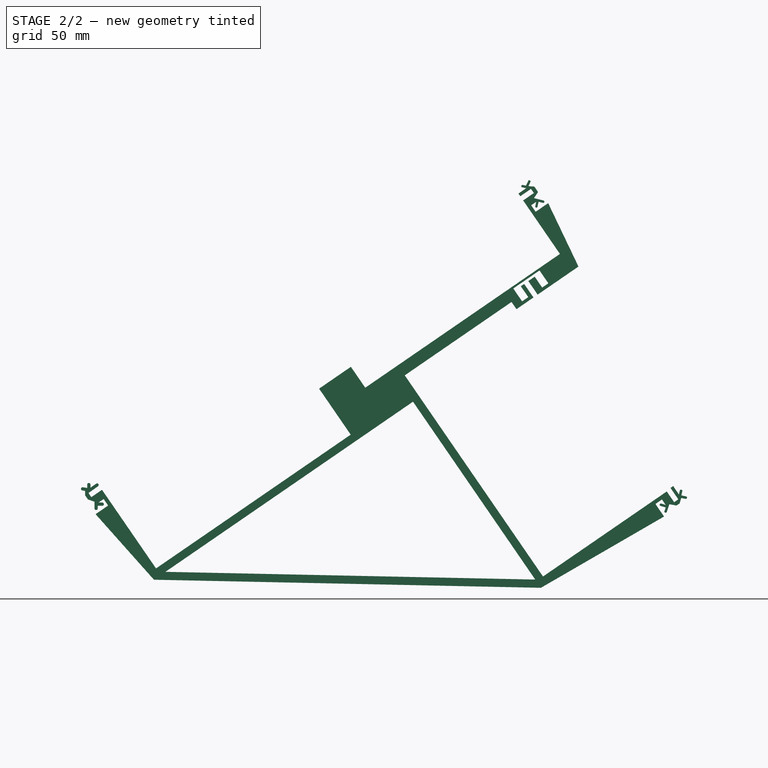
[diagram: stage 2 of 2 — front view after this stage's code; geometry added in this stage tinted green]
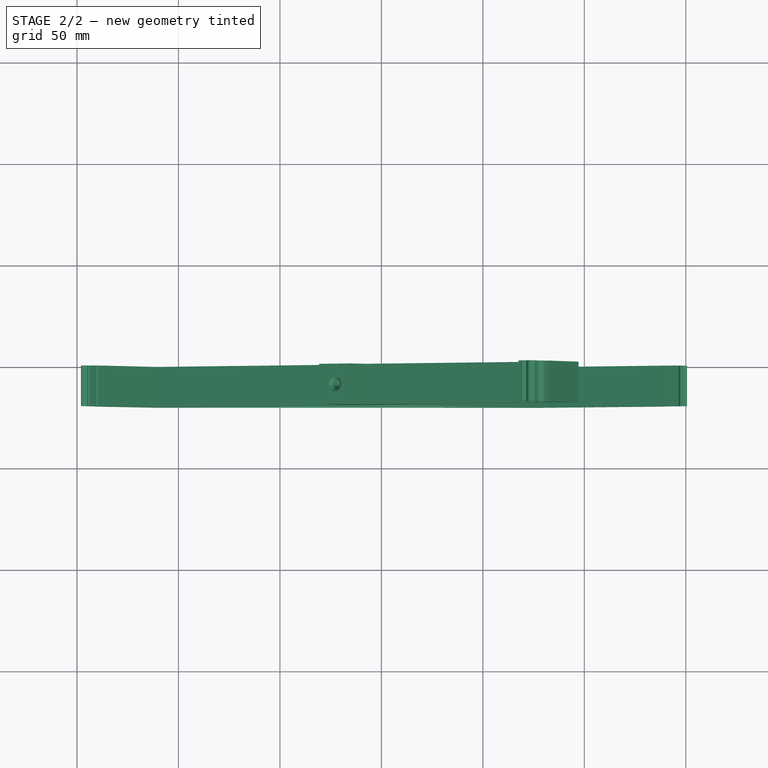
[diagram: stage 2 of 2 — top view after this stage's code; geometry added in this stage tinted green]
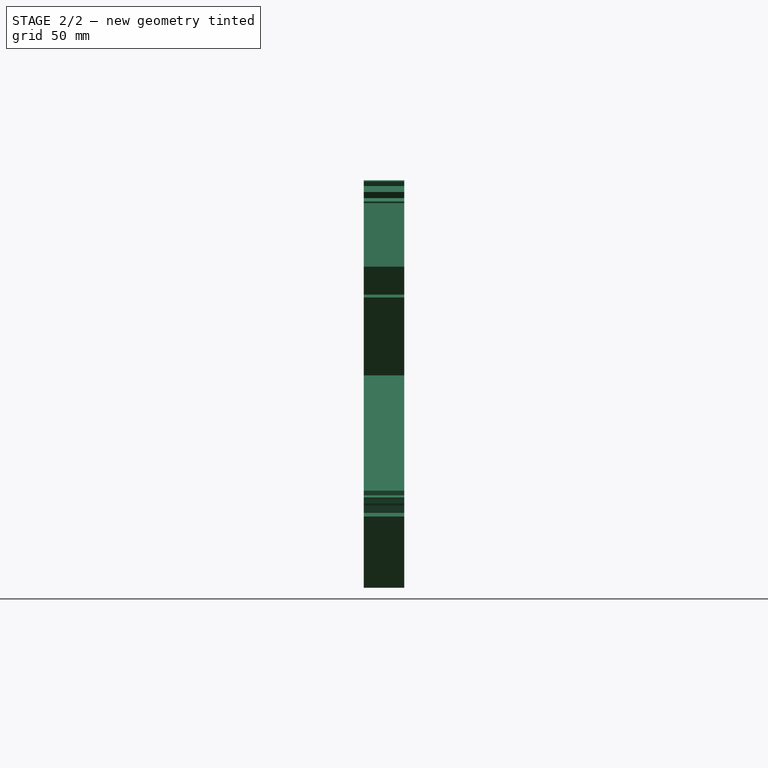
[diagram: stage 2 of 2 — right view after this stage's code; geometry added in this stage tinted green]
FEATURE [PartDesign::Chamfer] Chamfer
  Angle = 45
  Base = -> Pocket [Edge228]
  BaseFeature = -> Pocket
  ChamferType = 0
  FlipDirection = false
  Placement = pos=(0,0,0) rot=(1,0,0;1.5708rad)
  Size = 1.5
  Size2 = 1
  SupportTransform = false
  UseAllEdges = false
FEATURE [PartDesign::Body] Body
  Group = -> [Sketch,Pad,DatumPlane,Sketch001,Pocket,Chamfer]
  Origin = -> Origin
  Tip = -> Chamfer
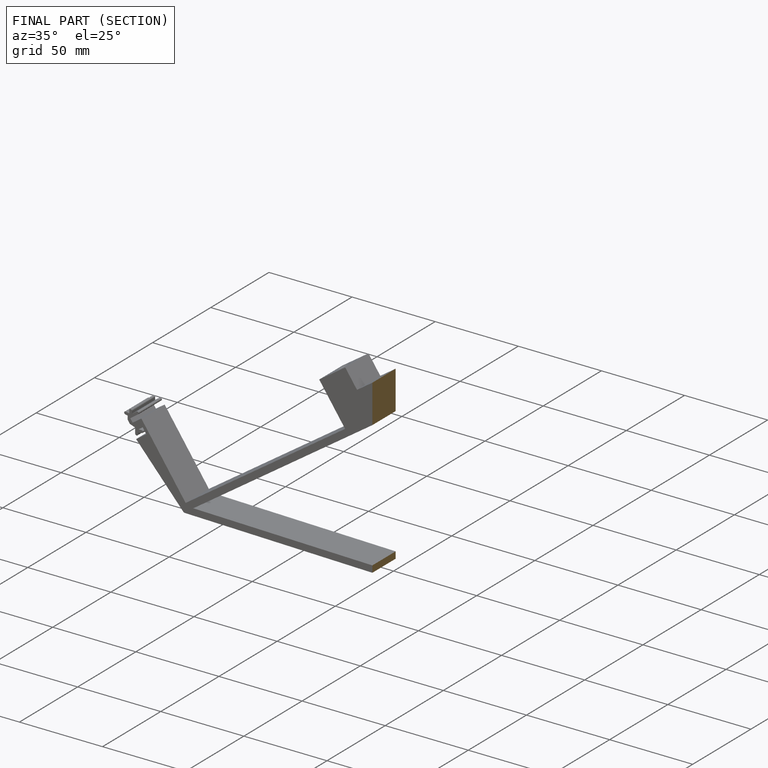
[diagram: finished part — half-section view (interior)]
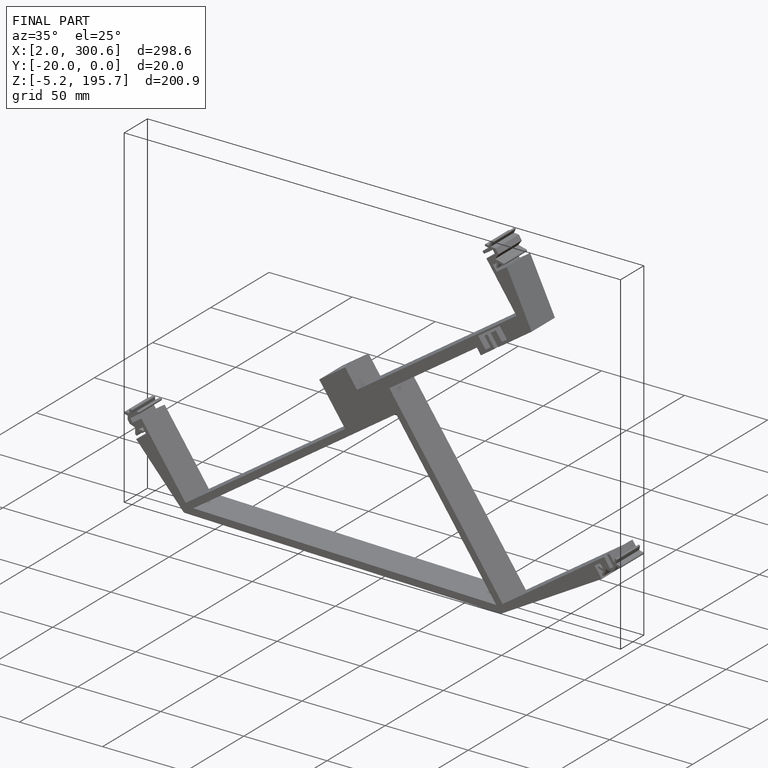
[diagram: finished part — iso view with bounding-box wireframe]
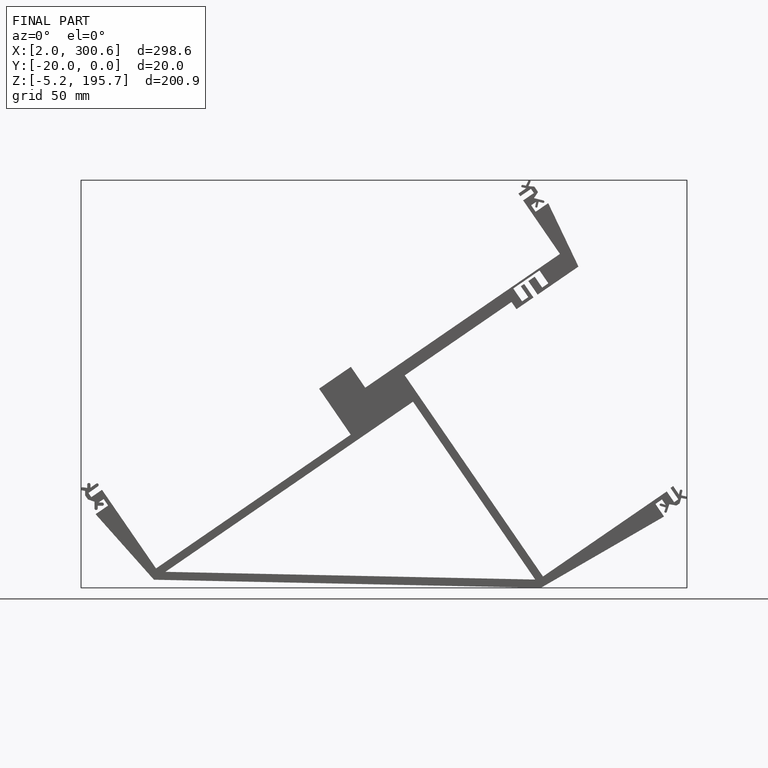
[diagram: finished part — front view with bounding-box wireframe]
